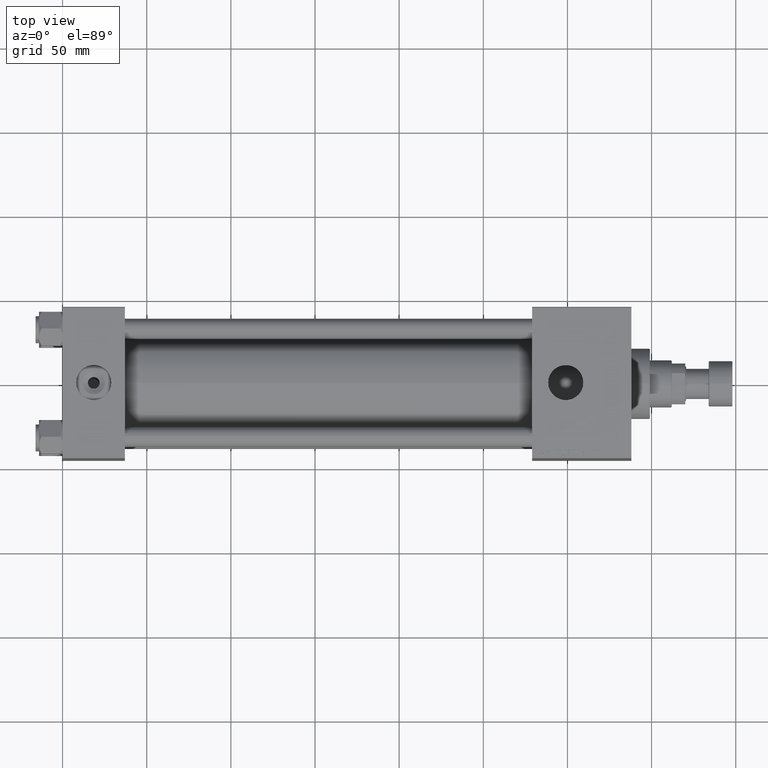
[diagram: clean part render]
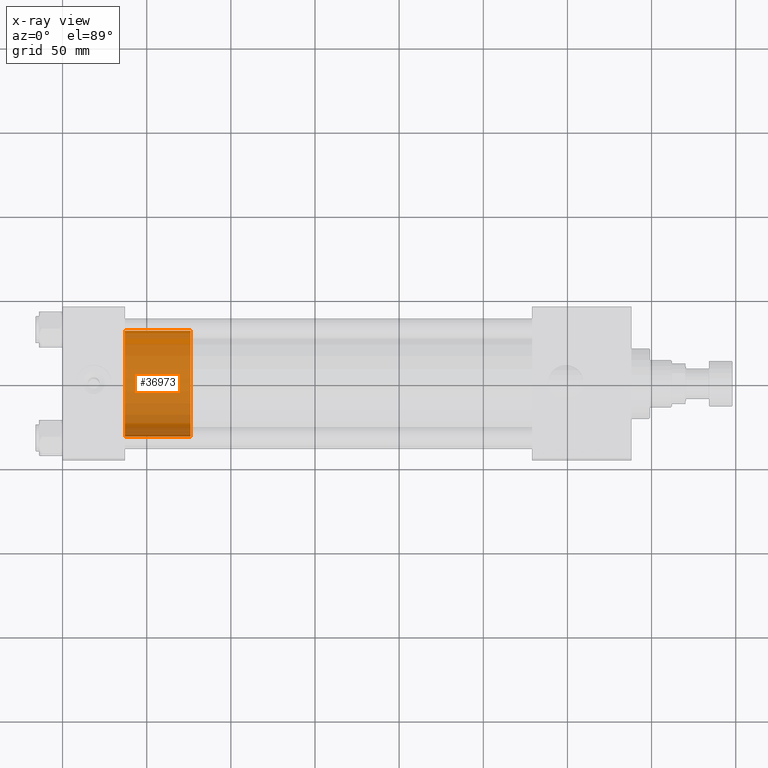
[diagram: x-ray — body ghosted, one internal face saturated and labeled with its STEP entity id]
A machine part, top view, then the same camera in x-ray: the body is ghosted and one INTERNAL B-rep face — a face not visible from any outside direction — is saturated and labeled: STEP entity #36973.
In plain terms, the highlighted cylindrical surface (partial cylindrical patch) has radius 31.5 mm, axis along (-1, 0, 0).
Its self-contained STEP definition (entity closure, byte-faithful):
#377 = AXIS2_PLACEMENT_3D ( 'NONE', #41658, #8589, #45924 ) ;
#3201 = FACE_OUTER_BOUND ( 'NONE', #51489, .T. ) ;
#6651 = LINE ( 'NONE', #18907, #8814 ) ;
#7043 = AXIS2_PLACEMENT_3D ( 'NONE', #12986, #8208, #7934 ) ;
#7934 = DIRECTION ( 'NONE',  ( 1.000000000000000000, 0.000000000000000000, 0.000000000000000000 ) ) ;
#8208 = DIRECTION ( 'NONE',  ( 0.000000000000000000, 0.000000000000000000, 1.000000000000000000 ) ) ;
#8283 = ORIENTED_EDGE ( 'NONE', *, *, #42218, .F. ) ;
#8589 = DIRECTION ( 'NONE',  ( 0.000000000000000000, 0.000000000000000000, 1.000000000000000000 ) ) ;
#8765 = ORIENTED_EDGE ( 'NONE', *, *, #10405, .F. ) ;
#8814 = VECTOR ( 'NONE', #35201, 1000.000000000000000 ) ;
#10405 = EDGE_CURVE ( 'NONE', #12193, #13853, #31915, .T. ) ;
#11340 = CARTESIAN_POINT ( 'NONE',  ( -31.50000000000000000, 0.000000000000000000, 39.00000000000000000 ) ) ;
#12170 = CIRCLE ( 'NONE', #7043, 31.50000000000000000 ) ;
#12193 = VERTEX_POINT ( 'NONE', #46287 ) ;
#12517 = EDGE_CURVE ( 'NONE', #12193, #37732, #6651, .T. ) ;
#12880 = VERTEX_POINT ( 'NONE', #32444 ) ;
#12986 = CARTESIAN_POINT ( 'NONE',  ( 0.000000000000000000, 0.000000000000000000, 0.000000000000000000 ) ) ;
#13853 = VERTEX_POINT ( 'NONE', #11340 ) ;
#18907 = CARTESIAN_POINT ( 'NONE',  ( 31.50000000000000000, 3.857637417314162689E-15, 39.00000000000000000 ) ) ;
#19455 = CYLINDRICAL_SURFACE ( 'NONE', #50825, 31.50000000000000000 ) ;
#20073 = LINE ( 'NONE', #48880, #47491 ) ;
#21434 = ORIENTED_EDGE ( 'NONE', *, *, #27804, .T. ) ;
#27804 = EDGE_CURVE ( 'NONE', #37732, #12880, #12170, .T. ) ;
#30688 = CARTESIAN_POINT ( 'NONE',  ( 31.50000000000000000, 3.857637417314162689E-15, 0.000000000000000000 ) ) ;
#31915 = CIRCLE ( 'NONE', #377, 31.50000000000000000 ) ;
#31999 = CARTESIAN_POINT ( 'NONE',  ( 0.000000000000000000, 0.000000000000000000, 39.00000000000000000 ) ) ;
#32444 = CARTESIAN_POINT ( 'NONE',  ( -31.50000000000000000, 0.000000000000000000, 0.000000000000000000 ) ) ;
#35201 = DIRECTION ( 'NONE',  ( -0.000000000000000000, -0.000000000000000000, -1.000000000000000000 ) ) ;
#35740 = DIRECTION ( 'NONE',  ( -0.000000000000000000, -0.000000000000000000, -1.000000000000000000 ) ) ;
#35829 = DIRECTION ( 'NONE',  ( -0.000000000000000000, -0.000000000000000000, -1.000000000000000000 ) ) ;
#36973 = ADVANCED_FACE ( 'NONE', ( #3201 ), #19455, .T. ) ;
#37732 = VERTEX_POINT ( 'NONE', #30688 ) ;
#41658 = CARTESIAN_POINT ( 'NONE',  ( 0.000000000000000000, 0.000000000000000000, 39.00000000000000000 ) ) ;
#42218 = EDGE_CURVE ( 'NONE', #13853, #12880, #20073, .T. ) ;
#45151 = ORIENTED_EDGE ( 'NONE', *, *, #12517, .T. ) ;
#45924 = DIRECTION ( 'NONE',  ( 1.000000000000000000, 0.000000000000000000, 0.000000000000000000 ) ) ;
#46287 = CARTESIAN_POINT ( 'NONE',  ( 31.50000000000000000, 3.857637417314162689E-15, 39.00000000000000000 ) ) ;
#47491 = VECTOR ( 'NONE', #35829, 1000.000000000000000 ) ;
#48880 = CARTESIAN_POINT ( 'NONE',  ( -31.50000000000000000, 0.000000000000000000, 39.00000000000000000 ) ) ;
#50825 = AXIS2_PLACEMENT_3D ( 'NONE', #31999, #35740, #52006 ) ;
#51489 = EDGE_LOOP ( 'NONE', ( #8765, #45151, #21434, #8283 ) ) ;
#52006 = DIRECTION ( 'NONE',  ( -1.000000000000000000, 0.000000000000000000, 0.000000000000000000 ) ) ;